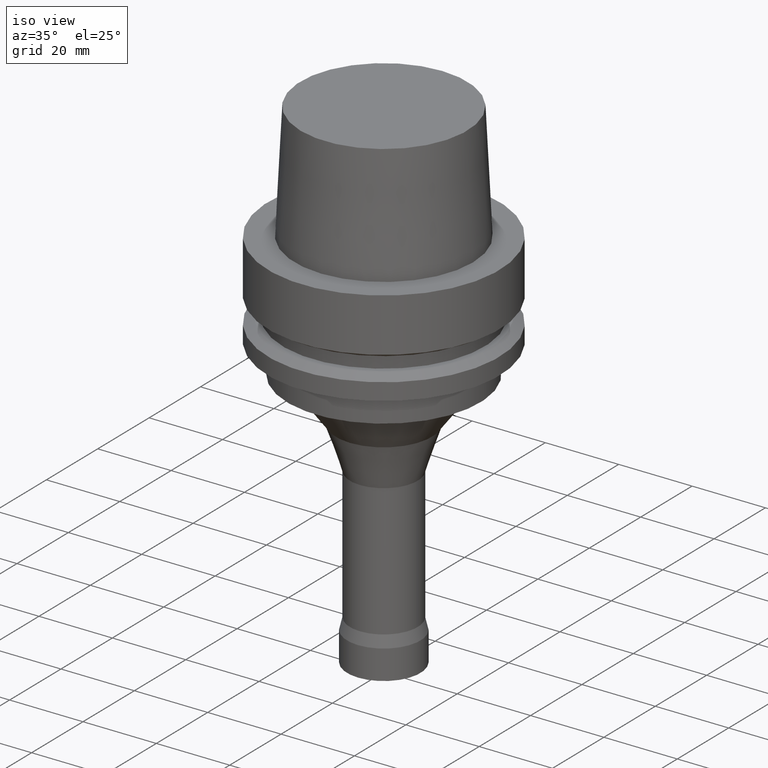
[diagram: clean part render]
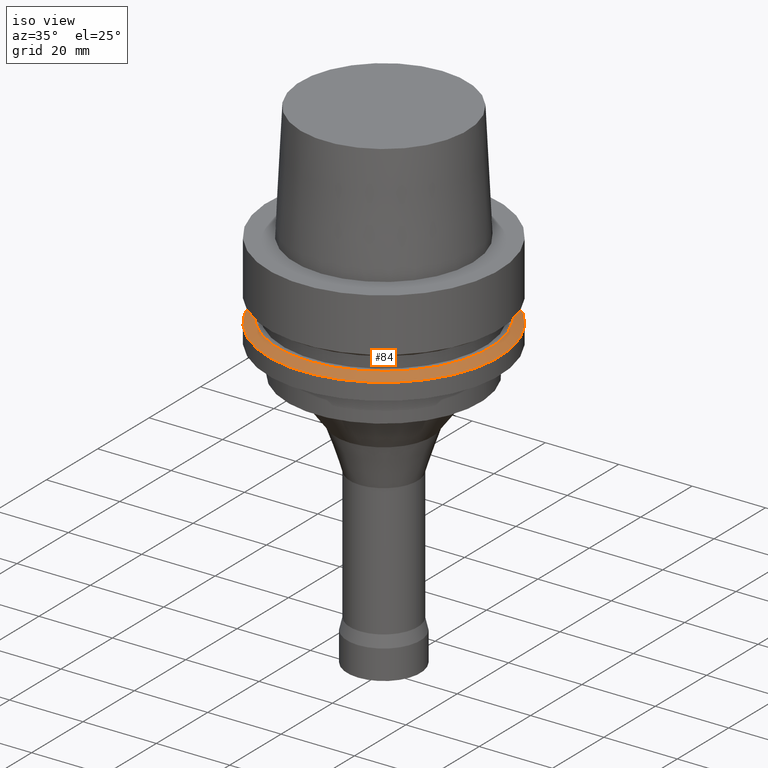
[diagram: same view with one face highlighted and labeled with its STEP entity id]
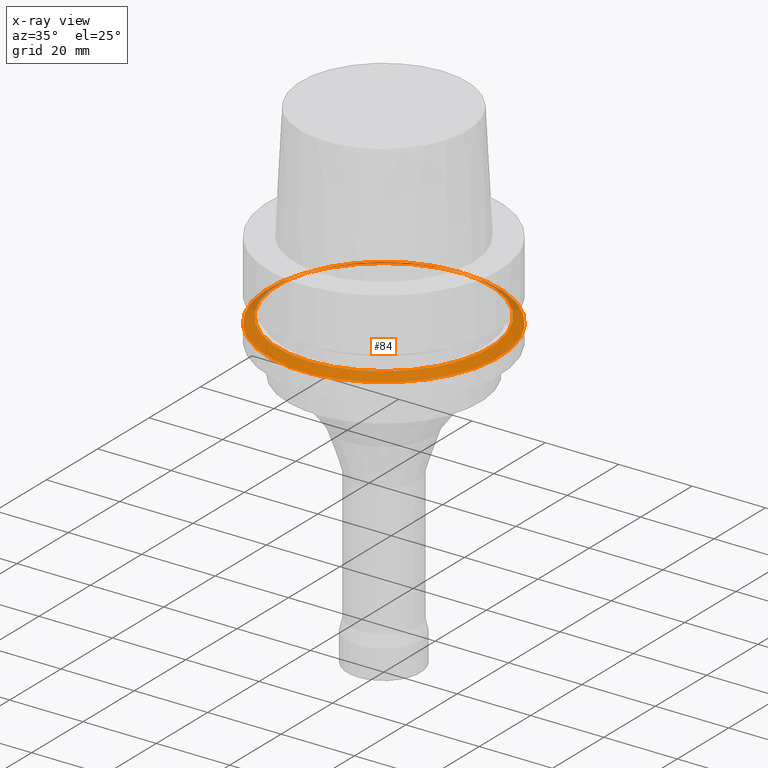
[diagram: x-ray of the same camera — body ghosted, the highlighted face saturated]
A machine part, iso view. The second image highlights one B-rep face of the part: STEP entity #84.
The next image is the same camera in x-ray: the body ghosted, the highlighted face saturated — about 11% of this face is hidden behind the body in this view.
In plain terms, the highlighted conical surface has half-angle 60 deg.
Its self-contained STEP definition (entity closure, byte-faithful):
#84=ADVANCED_FACE('',(#121,#122),#123,.T.);
#121=FACE_BOUND('',#179,.T.);
#122=FACE_BOUND('',#180,.T.);
#123=CONICAL_SURFACE('',#181,30.19879763,1.04719755326565);
#179=EDGE_LOOP('',(#255));
#180=EDGE_LOOP('',(#256));
#181=AXIS2_PLACEMENT_3D('',#257,#258,#259);
#255=ORIENTED_EDGE('',*,*,#319,.F.);
#256=ORIENTED_EDGE('',*,*,#318,.T.);
#257=CARTESIAN_POINT('',(1.26299352357262E-015,2.52598704714523E-015,-20.626249535));
#258=DIRECTION('',(6.12323399573677E-017,1.22464679914735E-016,-1.0));
#259=DIRECTION('',(-1.23259516440783E-032,1.0,1.22464679914735E-016));
#318=EDGE_CURVE('',#345,#345,#346,.T.);
#319=EDGE_CURVE('',#347,#347,#348,.T.);
#345=VERTEX_POINT('',#383);
#346=CIRCLE('',#384,28.89759526);
#347=VERTEX_POINT('',#385);
#348=CIRCLE('',#386,31.5);
#383=CARTESIAN_POINT('',(1.21699275665268E-015,28.89759526,-19.875));
#384=AXIS2_PLACEMENT_3D('',#429,#430,#431);
#385=CARTESIAN_POINT('',(1.30899429049255E-015,31.5,-21.37749907));
#386=AXIS2_PLACEMENT_3D('',#432,#433,#434);
#429=CARTESIAN_POINT('',(1.21699275665268E-015,2.43398551330536E-015,-19.875));
#430=DIRECTION('',(6.12323399573677E-017,1.22464679914735E-016,-1.0));
#431=DIRECTION('',(-1.23259516440783E-032,1.0,1.22464679914735E-016));
#432=CARTESIAN_POINT('',(1.30899429049255E-015,2.6179885809851E-015,-21.37749907));
#433=DIRECTION('',(6.12323399573677E-017,1.22464679914735E-016,-1.0));
#434=DIRECTION('',(-1.23259516440783E-032,1.0,1.22464679914735E-016));